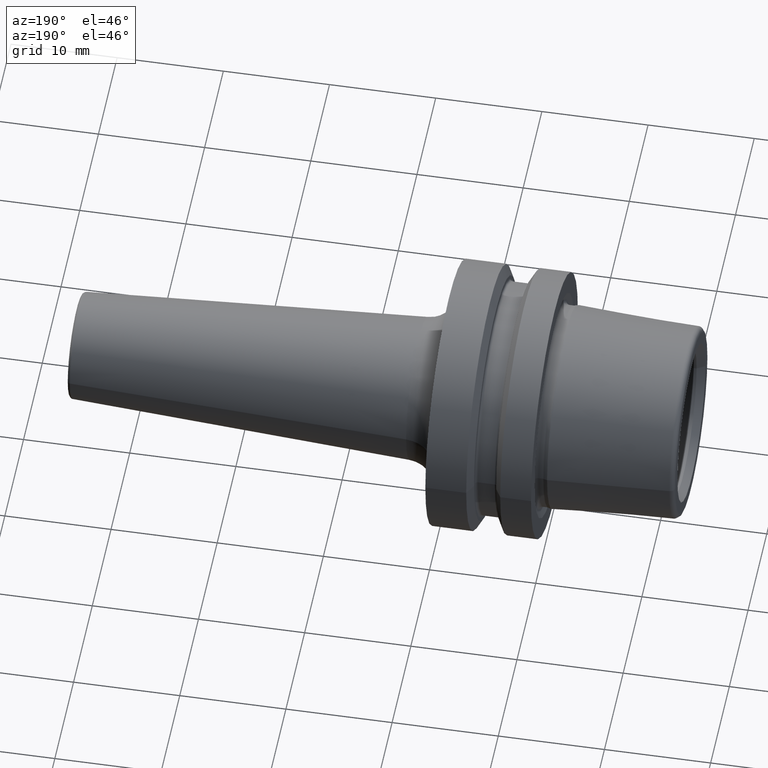
[diagram: clean part render]
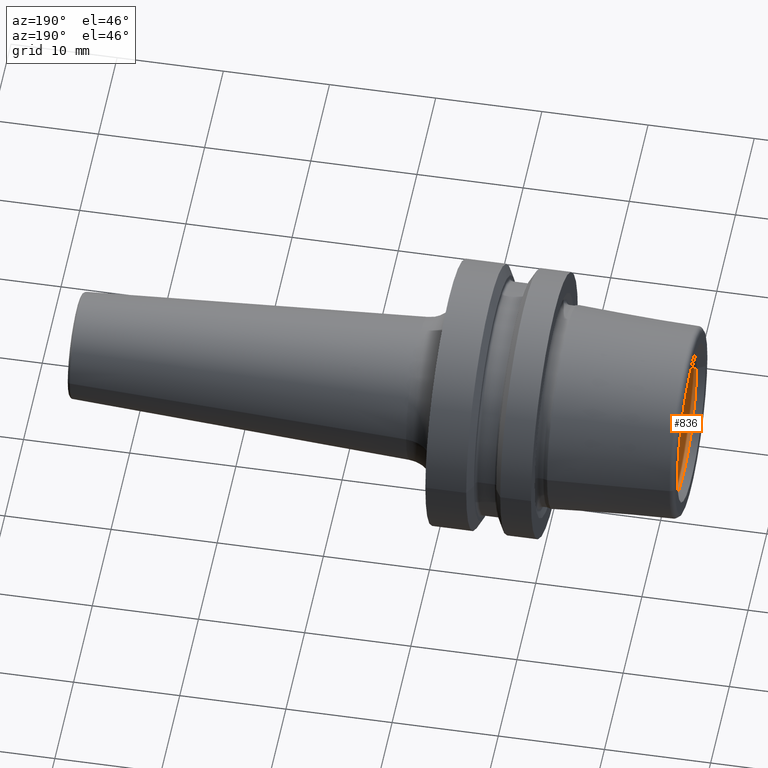
[diagram: same view with one face highlighted and labeled with its STEP entity id]
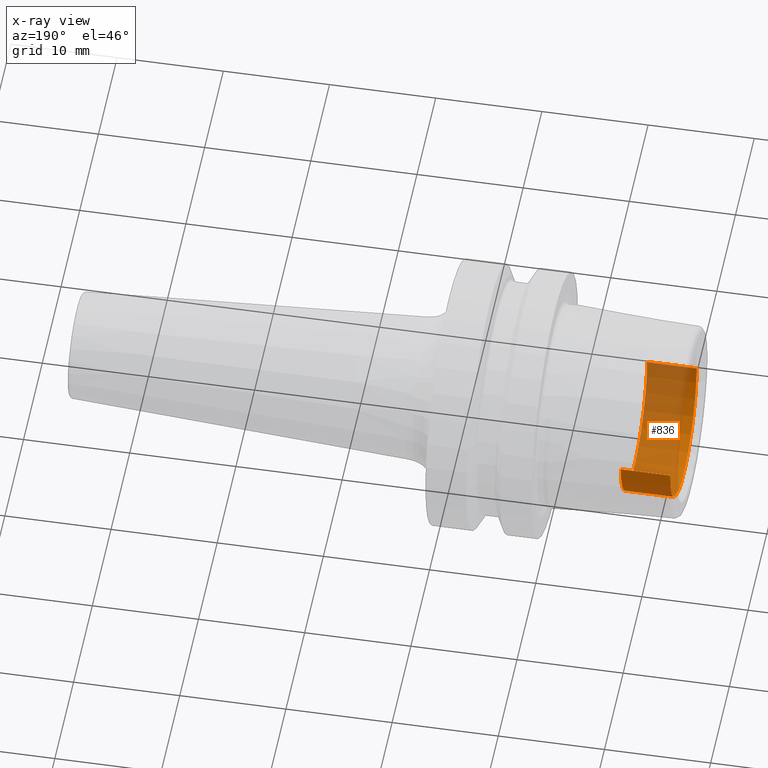
[diagram: x-ray of the same camera — body ghosted, the highlighted face saturated]
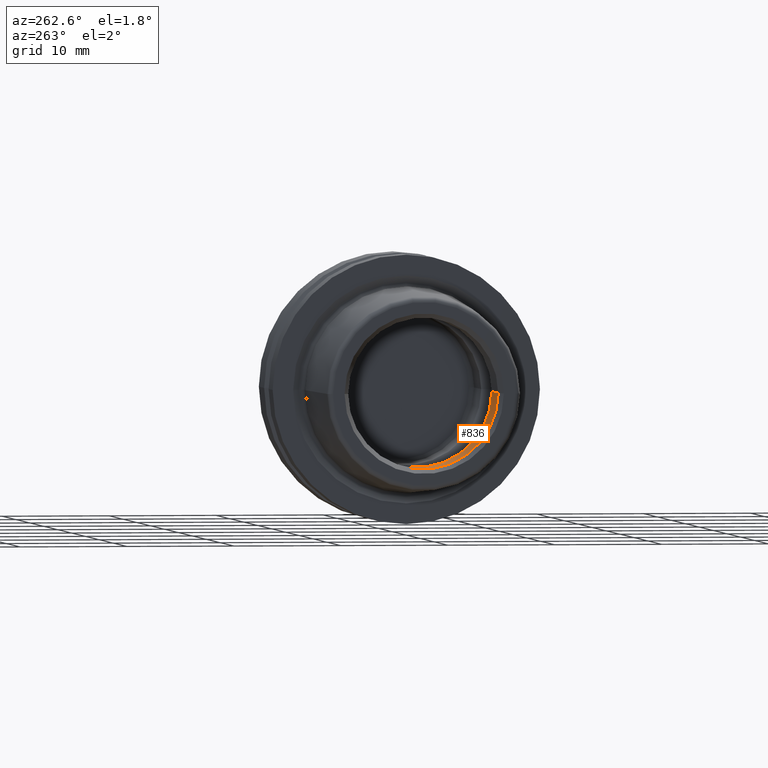
[diagram: same view with one face highlighted and labeled with its STEP entity id]
A machine part, auxiliary view. The second image highlights one B-rep face of the part: STEP entity #836.
The next image is the same camera in x-ray: the body ghosted, the highlighted face saturated — about 69% of this face is hidden behind the body in this view.
A second angle (auxiliary view) of the same face is appended — the face is thin or edge-on in the first view.
In plain terms, the highlighted cylindrical surface (partial cylindrical patch) has radius 7.0175 mm, axis along (1, 0, 0).
Its self-contained STEP definition (entity closure, byte-faithful):
#87=CARTESIAN_POINT('',(-1.215E1,0.E0,0.E0));
#88=DIRECTION('',(-1.E0,0.E0,0.E0));
#89=DIRECTION('',(0.E0,1.E0,0.E0));
#90=AXIS2_PLACEMENT_3D('',#87,#88,#89);
#96=DIRECTION('',(-1.E0,0.E0,0.E0));
#97=VECTOR('',#96,4.661428495116E0);
#98=CARTESIAN_POINT('',(-7.488571504884E0,7.0175E0,0.E0));
#99=LINE('',#98,#97);
#100=CARTESIAN_POINT('',(-7.488571504884E0,0.E0,0.E0));
#101=DIRECTION('',(-1.E0,0.E0,0.E0));
#102=DIRECTION('',(0.E0,1.E0,0.E0));
#103=AXIS2_PLACEMENT_3D('',#100,#101,#102);
#105=DIRECTION('',(-1.E0,0.E0,0.E0));
#106=VECTOR('',#105,4.661428495116E0);
#107=CARTESIAN_POINT('',(-7.488571504884E0,-7.0175E0,0.E0));
#108=LINE('',#107,#106);
#648=CARTESIAN_POINT('',(-7.488571504884E0,7.0175E0,0.E0));
#649=VERTEX_POINT('',#648);
#650=CARTESIAN_POINT('',(-1.215E1,7.0175E0,0.E0));
#651=VERTEX_POINT('',#650);
#660=CARTESIAN_POINT('',(-7.488571504884E0,-7.0175E0,0.E0));
#661=VERTEX_POINT('',#660);
#662=CARTESIAN_POINT('',(-1.215E1,-7.0175E0,0.E0));
#663=VERTEX_POINT('',#662);
#822=CARTESIAN_POINT('',(-1.38425E1,0.E0,0.E0));
#823=DIRECTION('',(1.E0,0.E0,0.E0));
#824=DIRECTION('',(0.E0,-1.E0,0.E0));
#825=AXIS2_PLACEMENT_3D('',#822,#823,#824);
#826=CYLINDRICAL_SURFACE('',#825,7.0175E0);
#828=ORIENTED_EDGE('',*,*,#827,.F.);
#830=ORIENTED_EDGE('',*,*,#829,.T.);
#832=ORIENTED_EDGE('',*,*,#831,.T.);
#833=ORIENTED_EDGE('',*,*,#815,.F.);
#834=EDGE_LOOP('',(#828,#830,#832,#833));
#835=FACE_OUTER_BOUND('',#834,.F.);
#836=ADVANCED_FACE('',(#835),#826,.F.);
#91=CIRCLE('',#90,7.0175E0);
#104=CIRCLE('',#103,7.0175E0);
#815=EDGE_CURVE('',#651,#663,#91,.T.);
#827=EDGE_CURVE('',#649,#651,#99,.T.);
#829=EDGE_CURVE('',#649,#661,#104,.T.);
#831=EDGE_CURVE('',#661,#663,#108,.T.);